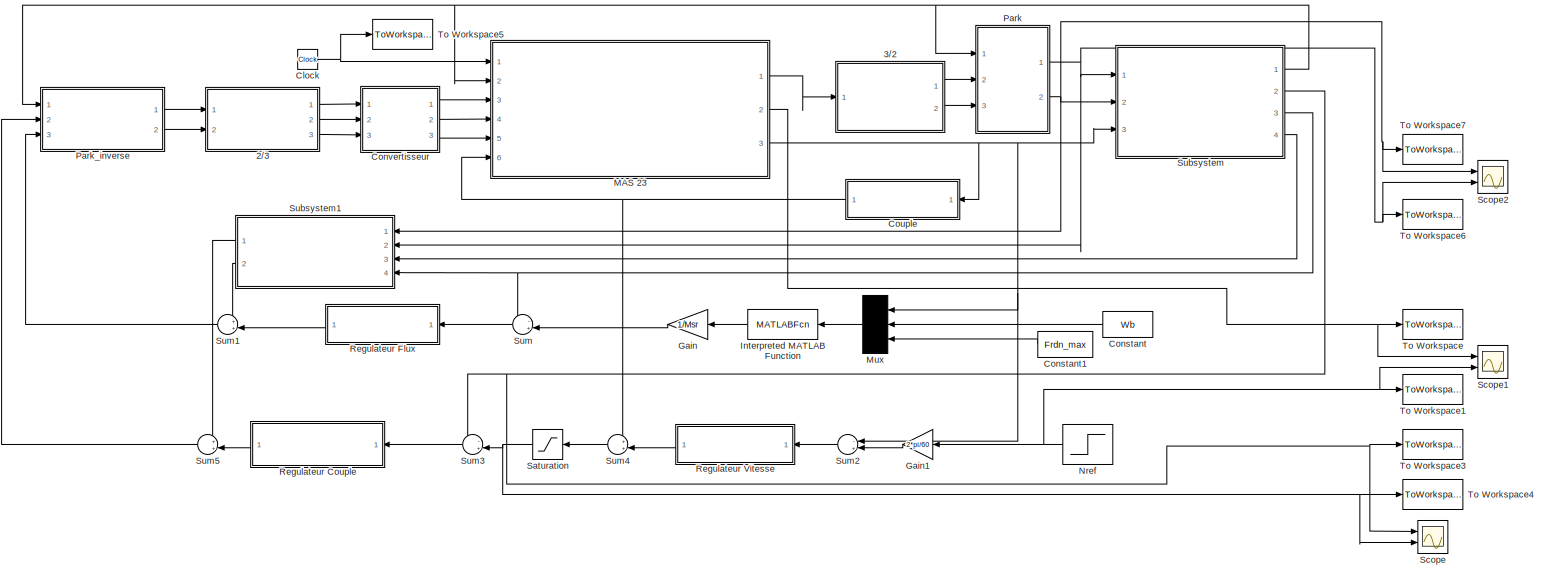
[diagram: root canvas - part 1/1, most of the canvas]
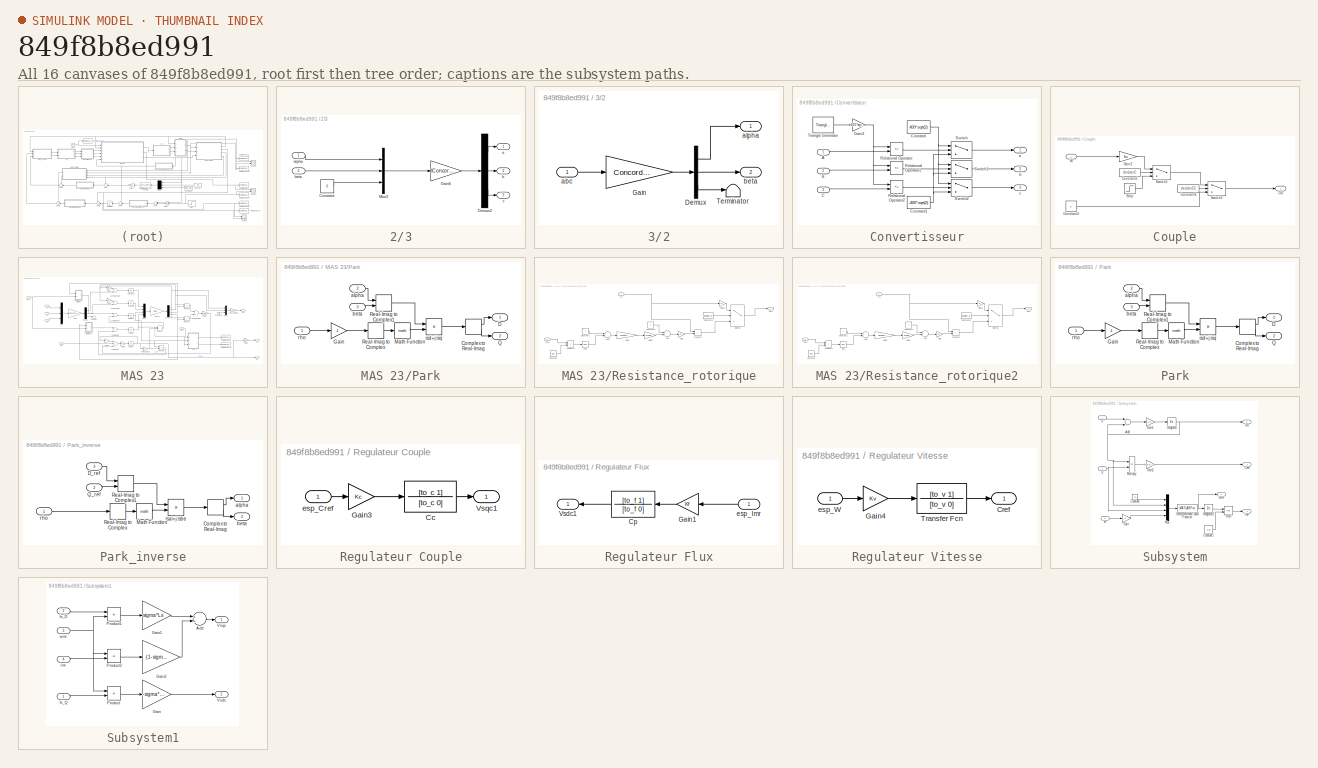
[diagram: thumbnail index - all 16 canvases of the model, root first then tree order]
MODEL slx_849f8b8ed991
KIND model
CONFIG AbsTol = auto
CONFIG EnableMultiTasking = off
CONFIG FixedStep = auto
CONFIG MaxStep = 1e-3
CONFIG MinStep = auto
CONFIG RelTol = 1e-3
CONFIG SampleTimeConstraint = Unconstrained
CONFIG Solver = ode45
CONFIG SolverName = ode45
CONFIG StartTime = 0.0
CONFIG StopTime = tps_sim
BLOCK [SubSystem] 2//3
  Ports = [2, 3]
  RequestExecContextInheritance = off
BLOCK [Constant] 2//3/Constant
  Value = 0
BLOCK [Demux] 2//3/Demux2
  DisplayOption = bar
  Outputs = 3
  Ports = [1, 3]
BLOCK [Gain] 2//3/Gain6
  Gain = IConcordia
  Multiplication = Matrix(K*u) (u vector)
  OutDataTypeStr = Inherit: Inherit via internal rule
  ParamDataTypeStr = Inherit: Inherit via internal rule
  SaturateOnIntegerOverflow = off
BLOCK [Mux] 2//3/Mux2
  DisplayOption = bar
  Inputs = 3
  Ports = [3, 1]
BLOCK [Outport] 2//3/a
  IconDisplay = Port number
BLOCK [Inport] 2//3/alpha
  IconDisplay = Port number
BLOCK [Outport] 2//3/b
  IconDisplay = Port number
  Port = 2
BLOCK [Inport] 2//3/beta
  IconDisplay = Port number
  Port = 2
BLOCK [Outport] 2//3/c
  IconDisplay = Port number
  Port = 3
BLOCK [SubSystem] 3//2
  Ports = [1, 2]
  RequestExecContextInheritance = off
BLOCK [Demux] 3//2/Demux
  DisplayOption = bar
  Outputs = 3
  Ports = [1, 3]
BLOCK [Gain] 3//2/Gain
  Gain = Concordia
  Multiplication = Matrix(K*u) (u vector)
  OutDataTypeStr = Inherit: Inherit via internal rule
  ParamDataTypeStr = Inherit: Inherit via internal rule
  SaturateOnIntegerOverflow = off
BLOCK [Terminator] 3//2/Terminator
BLOCK [Inport] 3//2/abc
  IconDisplay = Port number
BLOCK [Outport] 3//2/alpha
  IconDisplay = Port number
BLOCK [Outport] 3//2/beta
  IconDisplay = Port number
  Port = 2
BLOCK [Clock] Clock
BLOCK [Constant] Constant
  Value = Wb
BLOCK [Constant] Constant1
  Value = Frdn_max
BLOCK [SubSystem] Convertisseur
  Ports = [3, 3]
  RequestExecContextInheritance = off
BLOCK [Inport] Convertisseur/A
  IconDisplay = Port number
BLOCK [Inport] Convertisseur/B
  IconDisplay = Port number
  Port = 2
BLOCK [Inport] Convertisseur/C
  IconDisplay = Port number
  Port = 3
BLOCK [Constant] Convertisseur/Constant
  Value = 400*sqrt(2)
BLOCK [Constant] Convertisseur/Constant1
  Value = -400*sqrt(2)
BLOCK [Gain] Convertisseur/Gain3
  Gain = 400*sqrt(2)
  OutDataTypeStr = Inherit: Inherit via internal rule
  ParamDataTypeStr = Inherit: Inherit via internal rule
  SaturateOnIntegerOverflow = off
BLOCK [RelationalOperator] Convertisseur/Relational Operator
  InputSameDT = off
  Operator = <=
  OutDataTypeStr = boolean
  Ports = [2, 1]
  RndMeth = Simplest
BLOCK [RelationalOperator] Convertisseur/Relational Operator1
  InputSameDT = off
  Operator = <=
  OutDataTypeStr = boolean
  Ports = [2, 1]
  RndMeth = Simplest
BLOCK [RelationalOperator] Convertisseur/Relational Operator2
  InputSameDT = off
  Operator = <=
  OutDataTypeStr = boolean
  Ports = [2, 1]
  RndMeth = Simplest
BLOCK [Switch] Convertisseur/Switch
  Criteria = u2 > Threshold
  InputSameDT = off
  SaturateOnIntegerOverflow = off
BLOCK [Switch] Convertisseur/Switch1
  Criteria = u2 > Threshold
  InputSameDT = off
  SaturateOnIntegerOverflow = off
BLOCK [Switch] Convertisseur/Switch2
  Criteria = u2 > Threshold
  InputSameDT = off
  SaturateOnIntegerOverflow = off
BLOCK [Reference] Convertisseur/Triangle Generator  REF=powerlib_meascontrol/Pulse & Signal
Generators/Triangle
Generator
  Ports = [0, 1]
  SourceBlock = powerlib_meascontrol/Pulse & Signal\nGenerators/Triangle\nGenerator
  SourceProductBaseCode = PS
  SourceProductName = Simscape Power Systems
  SourceType = Triangle Generator
BLOCK [Outport] Convertisseur/a
  IconDisplay = Port number
BLOCK [Outport] Convertisseur/b
  IconDisplay = Port number
  Port = 2
BLOCK [Outport] Convertisseur/c
  IconDisplay = Port number
  Port = 3
BLOCK [SubSystem] Couple
  Ports = [1, 1]
  RequestExecContextInheritance = off
BLOCK [Constant] Couple/Constant1
  Value = deciderC
BLOCK [Constant] Couple/Constant2
  Value = 0
BLOCK [Constant] Couple/Constant4
  Value = deciderC2
BLOCK [Outport] Couple/Cr0
  IconDisplay = Port number
BLOCK [Gain] Couple/Gain2
  Gain = kc
  OutDataTypeStr = Inherit: Inherit via internal rule
  ParamDataTypeStr = Inherit: Inherit via internal rule
  SaturateOnIntegerOverflow = off
BLOCK [Step] Couple/Step
  After = C_in
  SampleTime = 0
  Time = 6
BLOCK [Switch] Couple/Switch1
  Criteria = u2 > Threshold
  InputSameDT = off
  SaturateOnIntegerOverflow = off
BLOCK [Switch] Couple/Switch2
  Criteria = u2 > Threshold
  InputSameDT = off
  SaturateOnIntegerOverflow = off
BLOCK [Inport] Couple/W
  IconDisplay = Port number
BLOCK [Gain] Gain
  Gain = 1/Msr
  OutDataTypeStr = Inherit: Inherit via internal rule
  ParamDataTypeStr = Inherit: Inherit via internal rule
  SaturateOnIntegerOverflow = off
BLOCK [Gain] Gain1
  Gain = 2*pi/60
  OutDataTypeStr = Inherit: Inherit via internal rule
  ParamDataTypeStr = Inherit: Inherit via internal rule
  SaturateOnIntegerOverflow = off
BLOCK [MATLABFcn] Interpreted MATLAB Function
  MATLABFcn = FluxCloche
  OutputDimensions = 1
  Ports = [1, 1]
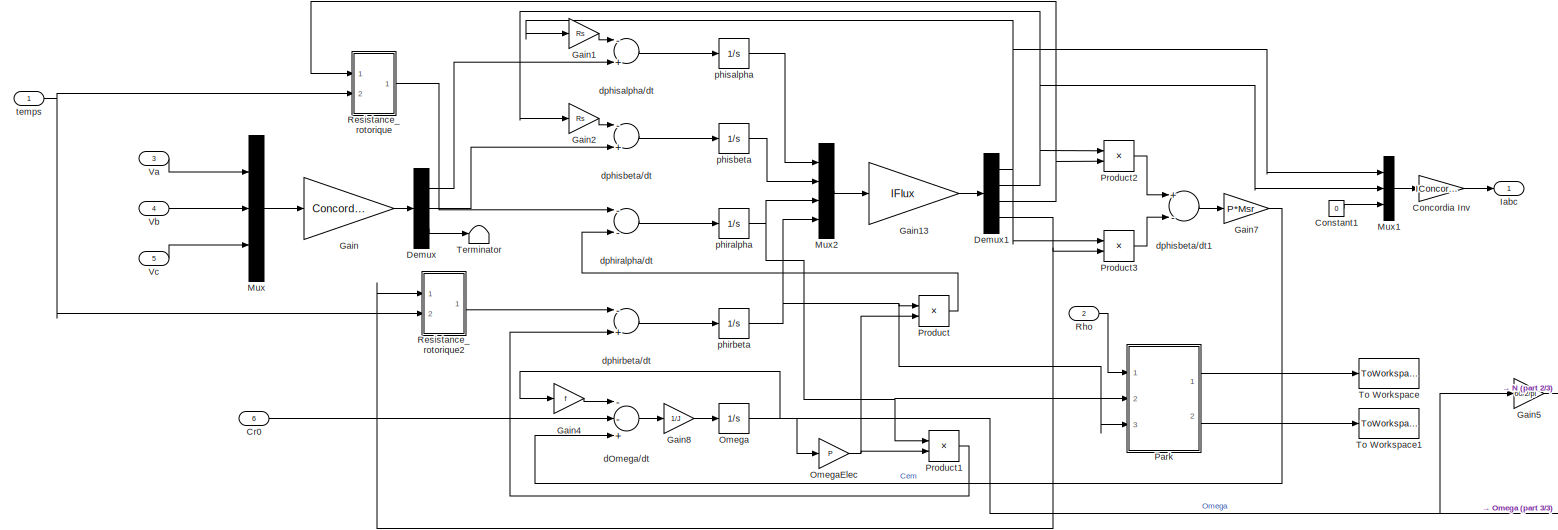
[diagram: MAS 23 - part 1/3, most of the canvas]
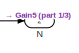
[diagram: MAS 23 - part 2/3, bottom right region]
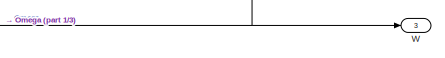
[diagram: MAS 23 - part 3/3, bottom right region]
BLOCK [SubSystem] MAS 23
  Ports = [6, 3]
  RequestExecContextInheritance = off
BLOCK [Gain] MAS 23/Concordia Inv
  Gain = IConcordia
  Multiplication = Matrix(K*u) (u vector)
  OutDataTypeStr = Inherit: Inherit via internal rule
  ParamDataTypeStr = Inherit: Inherit via internal rule
  SaturateOnIntegerOverflow = off
BLOCK [Constant] MAS 23/Constant1
  Value = 0
BLOCK [Inport] MAS 23/Cr0
  IconDisplay = Port number
  Port = 6
BLOCK [Demux] MAS 23/Demux
  Outputs = 3
  Ports = [1, 3]
BLOCK [Demux] MAS 23/Demux1
  DisplayOption = bar
  Ports = [1, 4]
BLOCK [Gain] MAS 23/Gain
  Gain = Concordia
  Multiplication = Matrix(K*u) (u vector)
  OutDataTypeStr = Inherit: Inherit via internal rule
  ParamDataTypeStr = Inherit: Inherit via internal rule
  SaturateOnIntegerOverflow = off
BLOCK [Gain] MAS 23/Gain1
  Gain = Rs
  OutDataTypeStr = Inherit: Inherit via internal rule
  ParamDataTypeStr = Inherit: Inherit via internal rule
  SaturateOnIntegerOverflow = off
BLOCK [Gain] MAS 23/Gain13
  Gain = IFlux
  Multiplication = Matrix(K*u) (u vector)
  OutDataTypeStr = Inherit: Inherit via internal rule
  ParamDataTypeStr = Inherit: Inherit via internal rule
  SaturateOnIntegerOverflow = off
BLOCK [Gain] MAS 23/Gain2
  Gain = Rs
  OutDataTypeStr = Inherit: Inherit via internal rule
  ParamDataTypeStr = Inherit: Inherit via internal rule
  SaturateOnIntegerOverflow = off
BLOCK [Gain] MAS 23/Gain4
  Gain = f
  OutDataTypeStr = Inherit: Inherit via internal rule
  ParamDataTypeStr = Inherit: Inherit via internal rule
  SaturateOnIntegerOverflow = off
BLOCK [Gain] MAS 23/Gain5
  Gain = 60/2/pi
  OutDataTypeStr = Inherit: Inherit via internal rule
  ParamDataTypeStr = Inherit: Inherit via internal rule
  SaturateOnIntegerOverflow = off
BLOCK [Gain] MAS 23/Gain7
  Gain = P*Msr
  OutDataTypeStr = Inherit: Inherit via internal rule
  ParamDataTypeStr = Inherit: Inherit via internal rule
  SaturateOnIntegerOverflow = off
BLOCK [Gain] MAS 23/Gain8
  Gain = 1/J
  OutDataTypeStr = Inherit: Inherit via internal rule
  ParamDataTypeStr = Inherit: Inherit via internal rule
  SaturateOnIntegerOverflow = off
BLOCK [Outport] MAS 23/Iabc
  IconDisplay = Port number
BLOCK [Mux] MAS 23/Mux
  Inputs = 3
  Ports = [3, 1]
BLOCK [Mux] MAS 23/Mux1
  Inputs = 3
  Ports = [3, 1]
BLOCK [Mux] MAS 23/Mux2
  Ports = [4, 1]
BLOCK [Outport] MAS 23/N
  IconDisplay = Port number
  Port = 2
BLOCK [Integrator] MAS 23/Omega
  Ports = [1, 1]
BLOCK [Gain] MAS 23/OmegaElec
  Gain = P
  OutDataTypeStr = Inherit: Inherit via internal rule
  ParamDataTypeStr = Inherit: Inherit via internal rule
  SaturateOnIntegerOverflow = off
BLOCK [SubSystem] MAS 23/Park
  Ports = [3, 2]
  RequestExecContextInheritance = off
BLOCK [ComplexToRealImag] MAS 23/Park/Complex to Real-Imag
  Ports = [1, 2]
BLOCK [Outport] MAS 23/Park/D
  IconDisplay = Port number
BLOCK [Gain] MAS 23/Park/Gain
  Gain = -1
  OutDataTypeStr = Inherit: Inherit via internal rule
  ParamDataTypeStr = Inherit: Inherit via internal rule
  SaturateOnIntegerOverflow = off
BLOCK [Math] MAS 23/Park/Math Function
  Ports = [1, 1]
BLOCK [Outport] MAS 23/Park/Q
  IconDisplay = Port number
  Port = 2
BLOCK [RealImagToComplex] MAS 23/Park/Real-Imag to Complex
  Input = Imag
  Ports = [1, 1]
BLOCK [RealImagToComplex] MAS 23/Park/Real-Imag to Complex1
  Ports = [2, 1]
BLOCK [Inport] MAS 23/Park/alpha
  IconDisplay = Port number
  Port = 2
BLOCK [Inport] MAS 23/Park/beta
  IconDisplay = Port number
  Port = 3
BLOCK [Product] MAS 23/Park/isd+j isq
  InputSameDT = off
  OutDataTypeStr = Inherit: Inherit via internal rule
  Ports = [2, 1]
  RndMeth = Floor
  SaturateOnIntegerOverflow = off
BLOCK [Inport] MAS 23/Park/rho
  IconDisplay = Port number
BLOCK [Product] MAS 23/Product
  InputSameDT = off
  OutDataTypeStr = Inherit: Inherit via internal rule
  Ports = [2, 1]
  RndMeth = Floor
  SaturateOnIntegerOverflow = off
BLOCK [Product] MAS 23/Product1
  InputSameDT = off
  OutDataTypeStr = Inherit: Inherit via internal rule
  Ports = [2, 1]
  RndMeth = Floor
  SaturateOnIntegerOverflow = off
BLOCK [Product] MAS 23/Product2
  InputSameDT = off
  OutDataTypeStr = Inherit: Inherit via internal rule
  Ports = [2, 1]
  RndMeth = Floor
  SaturateOnIntegerOverflow = off
BLOCK [Product] MAS 23/Product3
  InputSameDT = off
  OutDataTypeStr = Inherit: Inherit via internal rule
  Ports = [2, 1]
  RndMeth = Floor
  SaturateOnIntegerOverflow = off
BLOCK [SubSystem] MAS 23/Resistance_rotorique
  Ports = [2, 1]
  RequestExecContextInheritance = off
BLOCK [Sum] MAS 23/Resistance_rotorique/Add
  InputSameDT = off
  OutDataTypeStr = Inherit: Inherit via internal rule
  Ports = [2, 1]
  SaturateOnIntegerOverflow = off
BLOCK [Sum] MAS 23/Resistance_rotorique/Add1
  InputSameDT = off
  Inputs = +-
  OutDataTypeStr = Inherit: Inherit via internal rule
  Ports = [2, 1]
  SaturateOnIntegerOverflow = off
BLOCK [Constant] MAS 23/Resistance_rotorique/Constant
  Value = -1/tau
BLOCK [Constant] MAS 23/Resistance_rotorique/Constant1
BLOCK [Constant] MAS 23/Resistance_rotorique/Constant2
BLOCK [Constant] MAS 23/Resistance_rotorique/Constant6
  Value = decider_R
BLOCK [Math] MAS 23/Resistance_rotorique/Exp
  Ports = [1, 1]
BLOCK [Gain] MAS 23/Resistance_rotorique/Gain
  Gain = Rr
  OutDataTypeStr = Inherit: Inherit via internal rule
  ParamDataTypeStr = Inherit: Inherit via internal rule
  SaturateOnIntegerOverflow = off
BLOCK [Gain] MAS 23/Resistance_rotorique/Gain11
  Gain = Rr
  OutDataTypeStr = Inherit: Inherit via internal rule
  ParamDataTypeStr = Inherit: Inherit via internal rule
  SaturateOnIntegerOverflow = off
BLOCK [Gain] MAS 23/Resistance_rotorique/Gain2
  Gain = echauffement
  OutDataTypeStr = Inherit: Inherit via internal rule
  ParamDataTypeStr = Inherit: Inherit via internal rule
  SaturateOnIntegerOverflow = off
BLOCK [Gain] MAS 23/Resistance_rotorique/Gain3
  Gain = alpha
  OutDataTypeStr = Inherit: Inherit via internal rule
  ParamDataTypeStr = Inherit: Inherit via internal rule
  SaturateOnIntegerOverflow = off
BLOCK [Inport] MAS 23/Resistance_rotorique/In1
  IconDisplay = Port number
BLOCK [Outport] MAS 23/Resistance_rotorique/Out1
  IconDisplay = Port number
BLOCK [Product] MAS 23/Resistance_rotorique/Product1
  InputSameDT = off
  OutDataTypeStr = Inherit: Inherit via internal rule
  Ports = [2, 1]
  RndMeth = Floor
  SaturateOnIntegerOverflow = off
BLOCK [Product] MAS 23/Resistance_rotorique/Product2
  InputSameDT = off
  OutDataTypeStr = Inherit: Inherit via internal rule
  Ports = [2, 1]
  RndMeth = Floor
  SaturateOnIntegerOverflow = off
BLOCK [Switch] MAS 23/Resistance_rotorique/Switch1
  Criteria = u2 > Threshold
  InputSameDT = off
  SaturateOnIntegerOverflow = off
BLOCK [Inport] MAS 23/Resistance_rotorique/Time
  IconDisplay = Port number
  Port = 2
BLOCK [SubSystem] MAS 23/Resistance_rotorique2
  Ports = [2, 1]
  RequestExecContextInheritance = off
BLOCK [Sum] MAS 23/Resistance_rotorique2/Add
  InputSameDT = off
  OutDataTypeStr = Inherit: Inherit via internal rule
  Ports = [2, 1]
  SaturateOnIntegerOverflow = off
BLOCK [Sum] MAS 23/Resistance_rotorique2/Add1
  InputSameDT = off
  Inputs = +-
  OutDataTypeStr = Inherit: Inherit via internal rule
  Ports = [2, 1]
  SaturateOnIntegerOverflow = off
BLOCK [Constant] MAS 23/Resistance_rotorique2/Constant
  Value = -1/tau
BLOCK [Constant] MAS 23/Resistance_rotorique2/Constant1
BLOCK [Constant] MAS 23/Resistance_rotorique2/Constant2
BLOCK [Constant] MAS 23/Resistance_rotorique2/Constant6
  Value = decider_R
BLOCK [Math] MAS 23/Resistance_rotorique2/Exp
  Ports = [1, 1]
BLOCK [Gain] MAS 23/Resistance_rotorique2/Gain
  Gain = Rr
  OutDataTypeStr = Inherit: Inherit via internal rule
  ParamDataTypeStr = Inherit: Inherit via internal rule
  SaturateOnIntegerOverflow = off
BLOCK [Gain] MAS 23/Resistance_rotorique2/Gain11
  Gain = Rr
  OutDataTypeStr = Inherit: Inherit via internal rule
  ParamDataTypeStr = Inherit: Inherit via internal rule
  SaturateOnIntegerOverflow = off
BLOCK [Gain] MAS 23/Resistance_rotorique2/Gain2
  Gain = echauffement
  OutDataTypeStr = Inherit: Inherit via internal rule
  ParamDataTypeStr = Inherit: Inherit via internal rule
  SaturateOnIntegerOverflow = off
BLOCK [Gain] MAS 23/Resistance_rotorique2/Gain3
  Gain = alpha
  OutDataTypeStr = Inherit: Inherit via internal rule
  ParamDataTypeStr = Inherit: Inherit via internal rule
  SaturateOnIntegerOverflow = off
BLOCK [Inport] MAS 23/Resistance_rotorique2/In1
  IconDisplay = Port number
BLOCK [Outport] MAS 23/Resistance_rotorique2/Out1
  IconDisplay = Port number
BLOCK [Product] MAS 23/Resistance_rotorique2/Product1
  InputSameDT = off
  OutDataTypeStr = Inherit: Inherit via internal rule
  Ports = [2, 1]
  RndMeth = Floor
  SaturateOnIntegerOverflow = off
BLOCK [Product] MAS 23/Resistance_rotorique2/Product2
  InputSameDT = off
  OutDataTypeStr = Inherit: Inherit via internal rule
  Ports = [2, 1]
  RndMeth = Floor
  SaturateOnIntegerOverflow = off
BLOCK [Switch] MAS 23/Resistance_rotorique2/Switch1
  Criteria = u2 > Threshold
  InputSameDT = off
  SaturateOnIntegerOverflow = off
BLOCK [Inport] MAS 23/Resistance_rotorique2/Time
  IconDisplay = Port number
  Port = 2
BLOCK [Inport] MAS 23/Rho
  IconDisplay = Port number
  Port = 2
BLOCK [Terminator] MAS 23/Terminator
BLOCK [ToWorkspace] MAS 23/To Workspace
  Commented = on
  FixptAsFi = on
  MaxDataPoints = inf
  Ports = [1]
  SampleTime = -1
  Save2DSignal = 3-D array (concatenate along third dimension)
  VariableName = Phi_RD
BLOCK [ToWorkspace] MAS 23/To Workspace1
  Commented = on
  FixptAsFi = on
  MaxDataPoints = inf
  Ports = [1]
  SampleTime = -1
  Save2DSignal = 3-D array (concatenate along third dimension)
  VariableName = Phi_RQ
BLOCK [Inport] MAS 23/Va
  IconDisplay = Port number
  Port = 3
BLOCK [Inport] MAS 23/Vb
  IconDisplay = Port number
  Port = 4
BLOCK [Inport] MAS 23/Vc
  IconDisplay = Port number
  Port = 5
BLOCK [Outport] MAS 23/W
  IconDisplay = Port number
  Port = 3
BLOCK [Sum] MAS 23/dOmega//dt
  InputSameDT = off
  Inputs = --+
  OutDataTypeStr = Inherit: Inherit via internal rule
  Ports = [3, 1]
  SaturateOnIntegerOverflow = off
BLOCK [Sum] MAS 23/dphiralpha//dt
  InputSameDT = off
  Inputs = --
  OutDataTypeStr = Inherit: Inherit via internal rule
  Ports = [2, 1]
  SaturateOnIntegerOverflow = off
BLOCK [Sum] MAS 23/dphirbeta//dt
  InputSameDT = off
  Inputs = -+
  OutDataTypeStr = Inherit: Inherit via internal rule
  Ports = [2, 1]
  SaturateOnIntegerOverflow = off
BLOCK [Sum] MAS 23/dphisalpha//dt
  InputSameDT = off
  Inputs = -+
  OutDataTypeStr = Inherit: Inherit via internal rule
  Ports = [2, 1]
  SaturateOnIntegerOverflow = off
BLOCK [Sum] MAS 23/dphisbeta//dt
  InputSameDT = off
  Inputs = -+
  OutDataTypeStr = Inherit: Inherit via internal rule
  Ports = [2, 1]
  SaturateOnIntegerOverflow = off
BLOCK [Sum] MAS 23/dphisbeta//dt1
  InputSameDT = off
  Inputs = +-
  OutDataTypeStr = Inherit: Inherit via internal rule
  Ports = [2, 1]
  SaturateOnIntegerOverflow = off
BLOCK [Integrator] MAS 23/phiralpha
  Ports = [1, 1]
BLOCK [Integrator] MAS 23/phirbeta
  Ports = [1, 1]
BLOCK [Integrator] MAS 23/phisalpha
  Ports = [1, 1]
BLOCK [Integrator] MAS 23/phisbeta
  Ports = [1, 1]
BLOCK [Inport] MAS 23/temps
  IconDisplay = Port number
BLOCK [Mux] Mux
  Inputs = 3
  Ports = [3, 1]
BLOCK [Step] Nref
  After = N_in
  SampleTime = 0
  Time = 2
BLOCK [SubSystem] Park
  Ports = [3, 2]
  RequestExecContextInheritance = off
BLOCK [ComplexToRealImag] Park/Complex to Real-Imag
  Ports = [1, 2]
BLOCK [Outport] Park/D
  IconDisplay = Port number
BLOCK [Gain] Park/Gain
  Gain = -1
  OutDataTypeStr = Inherit: Inherit via internal rule
  ParamDataTypeStr = Inherit: Inherit via internal rule
  SaturateOnIntegerOverflow = off
BLOCK [Math] Park/Math Function
  Ports = [1, 1]
BLOCK [Outport] Park/Q
  IconDisplay = Port number
  Port = 2
BLOCK [RealImagToComplex] Park/Real-Imag to Complex
  Input = Imag
  Ports = [1, 1]
BLOCK [RealImagToComplex] Park/Real-Imag to Complex1
  Ports = [2, 1]
BLOCK [Inport] Park/alpha
  IconDisplay = Port number
  Port = 2
BLOCK [Inport] Park/beta
  IconDisplay = Port number
  Port = 3
BLOCK [Product] Park/isd+j isq
  InputSameDT = off
  OutDataTypeStr = Inherit: Inherit via internal rule
  Ports = [2, 1]
  RndMeth = Floor
  SaturateOnIntegerOverflow = off
BLOCK [Inport] Park/rho
  IconDisplay = Port number
BLOCK [SubSystem] Park_inverse
  Ports = [3, 2]
  RequestExecContextInheritance = off
BLOCK [ComplexToRealImag] Park_inverse/Complex to Real-Imag
  Ports = [1, 2]
BLOCK [Inport] Park_inverse/D_ref
  IconDisplay = Port number
  Port = 3
BLOCK [Math] Park_inverse/Math Function
  Ports = [1, 1]
BLOCK [Inport] Park_inverse/Q_ref
  IconDisplay = Port number
  Port = 2
BLOCK [RealImagToComplex] Park_inverse/Real-Imag to Complex
  Input = Imag
  Ports = [1, 1]
BLOCK [RealImagToComplex] Park_inverse/Real-Imag to Complex1
  Ports = [2, 1]
BLOCK [Outport] Park_inverse/alpha
  IconDisplay = Port number
BLOCK [Outport] Park_inverse/beta
  IconDisplay = Port number
  Port = 2
BLOCK [Product] Park_inverse/isal+j isbe
  InputSameDT = off
  OutDataTypeStr = Inherit: Inherit via internal rule
  Ports = [2, 1]
  RndMeth = Floor
  SaturateOnIntegerOverflow = off
BLOCK [Inport] Park_inverse/rho
  IconDisplay = Port number
BLOCK [SubSystem] Regulateur Couple
  Ports = [1, 1]
  RequestExecContextInheritance = off
BLOCK [TransferFcn] Regulateur Couple/Cc
  Denominator = [to_c 0]
  Numerator = [to_c 1]
BLOCK [Gain] Regulateur Couple/Gain3
  Gain = Kc
  OutDataTypeStr = Inherit: Inherit via internal rule
  ParamDataTypeStr = Inherit: Inherit via internal rule
  SaturateOnIntegerOverflow = off
BLOCK [Outport] Regulateur Couple/Vsqc1
  IconDisplay = Port number
BLOCK [Inport] Regulateur Couple/esp_Cref
  IconDisplay = Port number
BLOCK [SubSystem] Regulateur Flux
  Ports = [1, 1]
  RequestExecContextInheritance = off
BLOCK [TransferFcn] Regulateur Flux/Cp
  Denominator = [to_f 0]
  Numerator = [to_f 1]
BLOCK [Gain] Regulateur Flux/Gain1
  Gain = Kf
  OutDataTypeStr = Inherit: Inherit via internal rule
  ParamDataTypeStr = Inherit: Inherit via internal rule
  SaturateOnIntegerOverflow = off
BLOCK [Outport] Regulateur Flux/Vsdc1
  IconDisplay = Port number
BLOCK [Inport] Regulateur Flux/esp_Imr
  IconDisplay = Port number
BLOCK [SubSystem] Regulateur Vitesse
  Ports = [1, 1]
  RequestExecContextInheritance = off
BLOCK [Outport] Regulateur Vitesse/Cref
  IconDisplay = Port number
BLOCK [Gain] Regulateur Vitesse/Gain4
  Gain = Kv
  OutDataTypeStr = Inherit: Inherit via internal rule
  ParamDataTypeStr = Inherit: Inherit via internal rule
  SaturateOnIntegerOverflow = off
BLOCK [TransferFcn] Regulateur Vitesse/Transfer Fcn
  Denominator = [to_v 0]
  Numerator = [to_v 1]
BLOCK [Inport] Regulateur Vitesse/esp_W
  IconDisplay = Port number
BLOCK [Saturate] Saturation
  InputPortMap = u0
  LowerLimit = -Cemn
  Ports = [1, 1]
  UpperLimit = Cemn
BLOCK [Scope] Scope
  Floating = off
  NumInputPorts = 2
  Ports = [2]
  ScopeSpecificationString = Simulink.scopes.TimeScopeBlockCfg('CurrentConfiguration', extmgr.ConfigurationSet(extmgr.Configuration('Core','General UI',true),extmgr.Configuration('Core','Source UI',true),extmgr.Configuration('Sources','WiredSimulink',true),extmgr.Configuration('Visuals','Time Domain',true,'SerializedDisplays',{struct('MinYLimReal','-109.01661','MaxYLimReal','981.14953','YLabelReal','','MinYLimMag',' 0.00000',...<+1402ch>
BLOCK [Scope] Scope1
  Floating = off
  NumInputPorts = 2
  Ports = [2]
  ScopeSpecificationString = Simulink.scopes.TimeScopeBlockCfg('CurrentConfiguration', extmgr.ConfigurationSet(extmgr.Configuration('Core','General UI',true),extmgr.Configuration('Core','Source UI',true),extmgr.Configuration('Sources','WiredSimulink',true,'DataLoggingVariableName','ScopeData1'),extmgr.Configuration('Visuals','Time Domain',true,'SerializedDisplays',{struct('MinYLimReal','-109.01661','MaxYLimReal','981.14953','...<+1441ch>
BLOCK [Scope] Scope2
  Floating = off
  NumInputPorts = 2
  Ports = [2]
  ScopeSpecificationString = Simulink.scopes.TimeScopeBlockCfg('CurrentConfiguration', extmgr.ConfigurationSet(extmgr.Configuration('Core','General UI',true),extmgr.Configuration('Core','Source UI',true),extmgr.Configuration('Sources','WiredSimulink',true,'DataLoggingVariableName','ScopeData2'),extmgr.Configuration('Visuals','Time Domain',true,'SerializedDisplays',{struct('MinYLimReal','-109.01661','MaxYLimReal','981.14953','...<+1441ch>
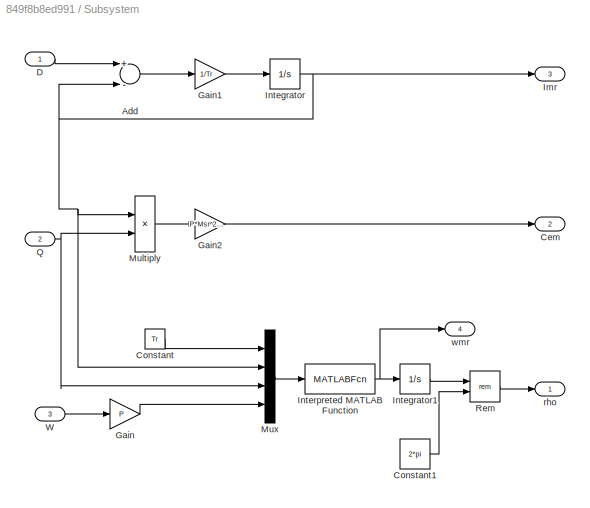
BLOCK [SubSystem] Subsystem
  Ports = [3, 4]
  RequestExecContextInheritance = off
BLOCK [Sum] Subsystem/Add
  InputSameDT = off
  Inputs = +-
  OutDataTypeStr = Inherit: Inherit via internal rule
  Ports = [2, 1]
  SaturateOnIntegerOverflow = off
BLOCK [Outport] Subsystem/Cem
  IconDisplay = Port number
  Port = 2
BLOCK [Constant] Subsystem/Constant
  Value = Tr
BLOCK [Constant] Subsystem/Constant1
  Value = 2*pi
BLOCK [Inport] Subsystem/D
  IconDisplay = Port number
BLOCK [Gain] Subsystem/Gain
  Gain = P
  OutDataTypeStr = Inherit: Inherit via internal rule
  ParamDataTypeStr = Inherit: Inherit via internal rule
  SaturateOnIntegerOverflow = off
BLOCK [Gain] Subsystem/Gain1
  Gain = 1/Tr
  OutDataTypeStr = Inherit: Inherit via internal rule
  ParamDataTypeStr = Inherit: Inherit via internal rule
  SaturateOnIntegerOverflow = off
BLOCK [Gain] Subsystem/Gain2
  Gain = P*Msr^2/Lr
  OutDataTypeStr = Inherit: Inherit via internal rule
  ParamDataTypeStr = Inherit: Inherit via internal rule
  SaturateOnIntegerOverflow = off
BLOCK [Outport] Subsystem/Imr
  IconDisplay = Port number
  Port = 3
BLOCK [Integrator] Subsystem/Integrator
  Ports = [1, 1]
BLOCK [Integrator] Subsystem/Integrator1
  Ports = [1, 1]
BLOCK [MATLABFcn] Subsystem/Interpreted MATLAB Function
  MATLABFcn = Omega_mr
  OutputDimensions = 1
  Ports = [1, 1]
BLOCK [Product] Subsystem/Multiply
  InputSameDT = off
  OutDataTypeStr = Inherit: Inherit via internal rule
  Ports = [2, 1]
  RndMeth = Floor
  SaturateOnIntegerOverflow = off
BLOCK [Mux] Subsystem/Mux
  DisplayOption = bar
  Ports = [4, 1]
BLOCK [Inport] Subsystem/Q
  IconDisplay = Port number
  Port = 2
BLOCK [Math] Subsystem/Rem
  Operator = rem
  Ports = [2, 1]
BLOCK [Inport] Subsystem/W
  IconDisplay = Port number
  Port = 3
BLOCK [Outport] Subsystem/rho
  IconDisplay = Port number
BLOCK [Outport] Subsystem/wmr
  IconDisplay = Port number
  Port = 4
BLOCK [SubSystem] Subsystem1
  Ports = [4, 2]
  RequestExecContextInheritance = off
BLOCK [Sum] Subsystem1/Add
  InputSameDT = off
  OutDataTypeStr = Inherit: Inherit via internal rule
  Ports = [2, 1]
  SaturateOnIntegerOverflow = off
BLOCK [Gain] Subsystem1/Gain
  Gain = -sigma*Ls
  OutDataTypeStr = Inherit: Inherit via internal rule
  ParamDataTypeStr = Inherit: Inherit via internal rule
  SaturateOnIntegerOverflow = off
BLOCK [Gain] Subsystem1/Gain1
  Gain = sigma*Ls
  OutDataTypeStr = Inherit: Inherit via internal rule
  ParamDataTypeStr = Inherit: Inherit via internal rule
  SaturateOnIntegerOverflow = off
BLOCK [Gain] Subsystem1/Gain2
  Gain = (1-sigma)*Ls
  OutDataTypeStr = Inherit: Inherit via internal rule
  ParamDataTypeStr = Inherit: Inherit via internal rule
  SaturateOnIntegerOverflow = off
BLOCK [Inport] Subsystem1/Is_D
  IconDisplay = Port number
  Port = 2
BLOCK [Inport] Subsystem1/Is_Q
  IconDisplay = Port number
BLOCK [Product] Subsystem1/Product
  InputSameDT = off
  OutDataTypeStr = Inherit: Inherit via internal rule
  Ports = [2, 1]
  RndMeth = Floor
  SaturateOnIntegerOverflow = off
BLOCK [Product] Subsystem1/Product1
  InputSameDT = off
  OutDataTypeStr = Inherit: Inherit via internal rule
  Ports = [2, 1]
  RndMeth = Floor
  SaturateOnIntegerOverflow = off
BLOCK [Product] Subsystem1/Product2
  InputSameDT = off
  OutDataTypeStr = Inherit: Inherit via internal rule
  Ports = [2, 1]
  RndMeth = Floor
  SaturateOnIntegerOverflow = off
BLOCK [Outport] Subsystem1/Vsdc
  IconDisplay = Port number
  Port = 2
BLOCK [Outport] Subsystem1/Vsqc
  IconDisplay = Port number
BLOCK [Inport] Subsystem1/imr
  IconDisplay = Port number
  Port = 4
BLOCK [Inport] Subsystem1/wmr
  IconDisplay = Port number
  Port = 3
BLOCK [Sum] Sum
  IconShape = round
  InputSameDT = off
  Inputs = -+|
  OutDataTypeStr = Inherit: Inherit via internal rule
  Ports = [2, 1]
  SaturateOnIntegerOverflow = off
BLOCK [Sum] Sum1
  IconShape = round
  InputSameDT = off
  Inputs = ++|
  OutDataTypeStr = Inherit: Inherit via internal rule
  Ports = [2, 1]
  SaturateOnIntegerOverflow = off
BLOCK [Sum] Sum2
  IconShape = round
  InputSameDT = off
  Inputs = -+|
  OutDataTypeStr = Inherit: Inherit via internal rule
  Ports = [2, 1]
  SaturateOnIntegerOverflow = off
BLOCK [Sum] Sum3
  IconShape = round
  InputSameDT = off
  Inputs = -+|
  OutDataTypeStr = Inherit: Inherit via internal rule
  Ports = [2, 1]
  SaturateOnIntegerOverflow = off
BLOCK [Sum] Sum4
  IconShape = round
  InputSameDT = off
  Inputs = ++|
  OutDataTypeStr = Inherit: Inherit via internal rule
  Ports = [2, 1]
  SaturateOnIntegerOverflow = off
BLOCK [Sum] Sum5
  IconShape = round
  InputSameDT = off
  Inputs = ++|
  OutDataTypeStr = Inherit: Inherit via internal rule
  Ports = [2, 1]
  SaturateOnIntegerOverflow = off
BLOCK [ToWorkspace] To Workspace
  Commented = on
  FixptAsFi = on
  MaxDataPoints = inf
  Ports = [1]
  SampleTime = -1
  Save2DSignal = 3-D array (concatenate along third dimension)
  VariableName = N
BLOCK [ToWorkspace] To Workspace1
  Commented = on
  FixptAsFi = on
  MaxDataPoints = inf
  Ports = [1]
  SampleTime = -1
  Save2DSignal = 3-D array (concatenate along third dimension)
  VariableName = NR
BLOCK [ToWorkspace] To Workspace3
  Commented = on
  FixptAsFi = on
  MaxDataPoints = inf
  Ports = [1]
  SampleTime = -1
  Save2DSignal = 3-D array (concatenate along third dimension)
  VariableName = CemS
BLOCK [ToWorkspace] To Workspace4
  Commented = on
  FixptAsFi = on
  MaxDataPoints = inf
  Ports = [1]
  SampleTime = -1
  Save2DSignal = 3-D array (concatenate along third dimension)
  VariableName = CemSR
BLOCK [ToWorkspace] To Workspace5
  FixptAsFi = on
  MaxDataPoints = inf
  Ports = [1]
  SampleTime = -1
  Save2DSignal = 3-D array (concatenate along third dimension)
  VariableName = Tout
BLOCK [ToWorkspace] To Workspace6
  Commented = on
  FixptAsFi = on
  MaxDataPoints = inf
  Ports = [1]
  SampleTime = -1
  Save2DSignal = 3-D array (concatenate along third dimension)
  VariableName = ID
BLOCK [ToWorkspace] To Workspace7
  Commented = on
  FixptAsFi = on
  MaxDataPoints = inf
  Ports = [1]
  SampleTime = -1
  Save2DSignal = 3-D array (concatenate along third dimension)
  VariableName = IQ
LINE 2//3/Constant:1 -> 2//3/Mux2:3
LINE 2//3/Demux2:1 -> 2//3/a:1
LINE 2//3/Demux2:2 -> 2//3/b:1
LINE 2//3/Demux2:3 -> 2//3/c:1
LINE 2//3/Gain6:1 -> 2//3/Demux2:1
LINE 2//3/Mux2:1 -> 2//3/Gain6:1
LINE 2//3/alpha:1 -> 2//3/Mux2:1
LINE 2//3/beta:1 -> 2//3/Mux2:2
LINE 2//3:1 -> Convertisseur:1
LINE 2//3:2 -> Convertisseur:2
LINE 2//3:3 -> Convertisseur:3
LINE 3//2/Demux:1 -> 3//2/alpha:1
LINE 3//2/Demux:2 -> 3//2/beta:1
LINE 3//2/Demux:3 -> 3//2/Terminator:1
LINE 3//2/Gain:1 -> 3//2/Demux:1
LINE 3//2/abc:1 -> 3//2/Gain:1
LINE 3//2:1 -> Park:2
LINE 3//2:2 -> Park:3
NET Clock:1 -> MAS 23:1, To Workspace5:1
LINE Constant1:1 -> Mux:3
LINE Constant:1 -> Mux:2
LINE Convertisseur/A:1 -> Convertisseur/Relational Operator:2
LINE Convertisseur/B:1 -> Convertisseur/Relational Operator1:2
LINE Convertisseur/C:1 -> Convertisseur/Relational Operator2:2
NET Convertisseur/Constant1:1 -> Convertisseur/Switch1:3, Convertisseur/Switch2:3, Convertisseur/Switch:3
NET Convertisseur/Constant:1 -> Convertisseur/Switch1:1, Convertisseur/Switch2:1, Convertisseur/Switch:1
NET Convertisseur/Gain3:1 -> Convertisseur/Relational Operator1:1, Convertisseur/Relational Operator2:1, Convertisseur/Relational Operator:1
LINE Convertisseur/Relational Operator1:1 -> Convertisseur/Switch1:2
LINE Convertisseur/Relational Operator2:1 -> Convertisseur/Switch2:2
LINE Convertisseur/Relational Operator:1 -> Convertisseur/Switch:2
LINE Convertisseur/Switch1:1 -> Convertisseur/b:1
LINE Convertisseur/Switch2:1 -> Convertisseur/c:1
LINE Convertisseur/Switch:1 -> Convertisseur/a:1
LINE Convertisseur/Triangle Generator:1 -> Convertisseur/Gain3:1
LINE Convertisseur:1 -> MAS 23:3
LINE Convertisseur:2 -> MAS 23:4
LINE Convertisseur:3 -> MAS 23:5
LINE Couple/Constant1:1 -> Couple/Switch1:2
LINE Couple/Constant2:1 -> Couple/Switch2:3
LINE Couple/Constant4:1 -> Couple/Switch2:2
LINE Couple/Gain2:1 -> Couple/Switch1:1
LINE Couple/Step:1 -> Couple/Switch1:3
LINE Couple/Switch1:1 -> Couple/Switch2:1
LINE Couple/Switch2:1 -> Couple/Cr0:1
LINE Couple/W:1 -> Couple/Gain2:1
NET Couple:1 -> MAS 23:6, Sum4:1
LINE Gain1:1 -> Sum2:2
LINE Gain:1 -> Sum:2
LINE Interpreted MATLAB Function:1 -> Gain:1
LINE MAS 23/Concordia Inv:1 -> MAS 23/Iabc:1
LINE MAS 23/Constant1:1 -> MAS 23/Mux1:3
LINE MAS 23/Cr0:1 -> MAS 23/dOmega//dt:2
NET MAS 23/Demux1:1 -> MAS 23/Gain1:1, MAS 23/Mux1:1, MAS 23/Product3:1
NET MAS 23/Demux1:2 -> MAS 23/Gain2:1, MAS 23/Mux1:2, MAS 23/Product2:1
NET MAS 23/Demux1:3 -> MAS 23/Product2:2, MAS 23/Resistance_rotorique:1
NET MAS 23/Demux1:4 -> MAS 23/Product3:2, MAS 23/Resistance_rotorique2:1
LINE MAS 23/Demux:1 -> MAS 23/dphisalpha//dt:2
LINE MAS 23/Demux:2 -> MAS 23/dphisbeta//dt:2
LINE MAS 23/Demux:3 -> MAS 23/Terminator:1
LINE MAS 23/Gain13:1 -> MAS 23/Demux1:1
LINE MAS 23/Gain1:1 -> MAS 23/dphisalpha//dt:1
LINE MAS 23/Gain2:1 -> MAS 23/dphisbeta//dt:1
LINE MAS 23/Gain4:1 -> MAS 23/dOmega//dt:1
LINE MAS 23/Gain5:1 -> MAS 23/N:1
LINE MAS 23/Gain7:1 -> MAS 23/dOmega//dt:3
LINE MAS 23/Gain8:1 -> MAS 23/Omega:1
LINE MAS 23/Gain:1 -> MAS 23/Demux:1
LINE MAS 23/Mux1:1 -> MAS 23/Concordia Inv:1
LINE MAS 23/Mux2:1 -> MAS 23/Gain13:1
LINE MAS 23/Mux:1 -> MAS 23/Gain:1
NET MAS 23/Omega:1 -> MAS 23/Gain4:1, MAS 23/Gain5:1, MAS 23/OmegaElec:1, MAS 23/W:1
NET MAS 23/OmegaElec:1 -> MAS 23/Product1:2, MAS 23/Product:2
LINE MAS 23/Park/Complex to Real-Imag:1 -> MAS 23/Park/D:1
LINE MAS 23/Park/Complex to Real-Imag:2 -> MAS 23/Park/Q:1
LINE MAS 23/Park/Gain:1 -> MAS 23/Park/Real-Imag to Complex:1
LINE MAS 23/Park/Math Function:1 -> MAS 23/Park/isd+j isq:2
LINE MAS 23/Park/Real-Imag to Complex1:1 -> MAS 23/Park/isd+j isq:1
LINE MAS 23/Park/Real-Imag to Complex:1 -> MAS 23/Park/Math Function:1
LINE MAS 23/Park/alpha:1 -> MAS 23/Park/Real-Imag to Complex1:1
LINE MAS 23/Park/beta:1 -> MAS 23/Park/Real-Imag to Complex1:2
LINE MAS 23/Park/isd+j isq:1 -> MAS 23/Park/Complex to Real-Imag:1
LINE MAS 23/Park/rho:1 -> MAS 23/Park/Gain:1
LINE MAS 23/Park:1 -> MAS 23/To Workspace:1
LINE MAS 23/Park:2 -> MAS 23/To Workspace1:1
LINE MAS 23/Product1:1 -> MAS 23/dphirbeta//dt:2
LINE MAS 23/Product2:1 -> MAS 23/dphisbeta//dt1:1
LINE MAS 23/Product3:1 -> MAS 23/dphisbeta//dt1:2
LINE MAS 23/Product:1 -> MAS 23/dphiralpha//dt:2
LINE MAS 23/Resistance_rotorique/Add1:1 -> MAS 23/Resistance_rotorique/Gain2:1
LINE MAS 23/Resistance_rotorique/Add:1 -> MAS 23/Resistance_rotorique/Gain:1
LINE MAS 23/Resistance_rotorique/Constant1:1 -> MAS 23/Resistance_rotorique/Add1:1
LINE MAS 23/Resistance_rotorique/Constant2:1 -> MAS 23/Resistance_rotorique/Add:1
LINE MAS 23/Resistance_rotorique/Constant6:1 -> MAS 23/Resistance_rotorique/Switch1:2
LINE MAS 23/Resistance_rotorique/Constant:1 -> MAS 23/Resistance_rotorique/Product1:2
LINE MAS 23/Resistance_rotorique/Exp:1 -> MAS 23/Resistance_rotorique/Add1:2
LINE MAS 23/Resistance_rotorique/Gain11:1 -> MAS 23/Resistance_rotorique/Switch1:1
LINE MAS 23/Resistance_rotorique/Gain2:1 -> MAS 23/Resistance_rotorique/Gain3:1
LINE MAS 23/Resistance_rotorique/Gain3:1 -> MAS 23/Resistance_rotorique/Add:2
LINE MAS 23/Resistance_rotorique/Gain:1 -> MAS 23/Resistance_rotorique/Product2:2
NET MAS 23/Resistance_rotorique/In1:1 -> MAS 23/Resistance_rotorique/Gain11:1, MAS 23/Resistance_rotorique/Product2:1
LINE MAS 23/Resistance_rotorique/Product1:1 -> MAS 23/Resistance_rotorique/Exp:1
LINE MAS 23/Resistance_rotorique/Product2:1 -> MAS 23/Resistance_rotorique/Switch1:3
LINE MAS 23/Resistance_rotorique/Switch1:1 -> MAS 23/Resistance_rotorique/Out1:1
LINE MAS 23/Resistance_rotorique/Time:1 -> MAS 23/Resistance_rotorique/Product1:1
LINE MAS 23/Resistance_rotorique2/Add1:1 -> MAS 23/Resistance_rotorique2/Gain2:1
LINE MAS 23/Resistance_rotorique2/Add:1 -> MAS 23/Resistance_rotorique2/Gain:1
LINE MAS 23/Resistance_rotorique2/Constant1:1 -> MAS 23/Resistance_rotorique2/Add1:1
LINE MAS 23/Resistance_rotorique2/Constant2:1 -> MAS 23/Resistance_rotorique2/Add:1
LINE MAS 23/Resistance_rotorique2/Constant6:1 -> MAS 23/Resistance_rotorique2/Switch1:2
LINE MAS 23/Resistance_rotorique2/Constant:1 -> MAS 23/Resistance_rotorique2/Product1:2
LINE MAS 23/Resistance_rotorique2/Exp:1 -> MAS 23/Resistance_rotorique2/Add1:2
LINE MAS 23/Resistance_rotorique2/Gain11:1 -> MAS 23/Resistance_rotorique2/Switch1:1
LINE MAS 23/Resistance_rotorique2/Gain2:1 -> MAS 23/Resistance_rotorique2/Gain3:1
LINE MAS 23/Resistance_rotorique2/Gain3:1 -> MAS 23/Resistance_rotorique2/Add:2
LINE MAS 23/Resistance_rotorique2/Gain:1 -> MAS 23/Resistance_rotorique2/Product2:2
NET MAS 23/Resistance_rotorique2/In1:1 -> MAS 23/Resistance_rotorique2/Gain11:1, MAS 23/Resistance_rotorique2/Product2:1
LINE MAS 23/Resistance_rotorique2/Product1:1 -> MAS 23/Resistance_rotorique2/Exp:1
LINE MAS 23/Resistance_rotorique2/Product2:1 -> MAS 23/Resistance_rotorique2/Switch1:3
LINE MAS 23/Resistance_rotorique2/Switch1:1 -> MAS 23/Resistance_rotorique2/Out1:1
LINE MAS 23/Resistance_rotorique2/Time:1 -> MAS 23/Resistance_rotorique2/Product1:1
LINE MAS 23/Resistance_rotorique2:1 -> MAS 23/dphirbeta//dt:1
LINE MAS 23/Resistance_rotorique:1 -> MAS 23/dphiralpha//dt:1
LINE MAS 23/Rho:1 -> MAS 23/Park:1
LINE MAS 23/Va:1 -> MAS 23/Mux:1
LINE MAS 23/Vb:1 -> MAS 23/Mux:2
LINE MAS 23/Vc:1 -> MAS 23/Mux:3
LINE MAS 23/dOmega//dt:1 -> MAS 23/Gain8:1
LINE MAS 23/dphiralpha//dt:1 -> MAS 23/phiralpha:1
LINE MAS 23/dphirbeta//dt:1 -> MAS 23/phirbeta:1
LINE MAS 23/dphisalpha//dt:1 -> MAS 23/phisalpha:1
LINE MAS 23/dphisbeta//dt1:1 -> MAS 23/Gain7:1
LINE MAS 23/dphisbeta//dt:1 -> MAS 23/phisbeta:1
NET MAS 23/phiralpha:1 -> MAS 23/Mux2:3, MAS 23/Park:2, MAS 23/Product1:1
NET MAS 23/phirbeta:1 -> MAS 23/Mux2:4, MAS 23/Park:3, MAS 23/Product:1
LINE MAS 23/phisalpha:1 -> MAS 23/Mux2:1
LINE MAS 23/phisbeta:1 -> MAS 23/Mux2:2
NET MAS 23/temps:1 -> MAS 23/Resistance_rotorique2:2, MAS 23/Resistance_rotorique:2
LINE MAS 23:1 -> 3//2:1
NET MAS 23:2 -> Scope1:1, To Workspace:1
NET MAS 23:3 -> Couple:1, Mux:1, Subsystem:3, Sum2:1
LINE Mux:1 -> Interpreted MATLAB Function:1
NET Nref:1 -> Gain1:1, Scope1:2, To Workspace1:1
LINE Park/Complex to Real-Imag:1 -> Park/D:1
LINE Park/Complex to Real-Imag:2 -> Park/Q:1
LINE Park/Gain:1 -> Park/Real-Imag to Complex:1
LINE Park/Math Function:1 -> Park/isd+j isq:2
LINE Park/Real-Imag to Complex1:1 -> Park/isd+j isq:1
LINE Park/Real-Imag to Complex:1 -> Park/Math Function:1
LINE Park/alpha:1 -> Park/Real-Imag to Complex1:1
LINE Park/beta:1 -> Park/Real-Imag to Complex1:2
LINE Park/isd+j isq:1 -> Park/Complex to Real-Imag:1
LINE Park/rho:1 -> Park/Gain:1
NET Park:1 -> Scope2:2, Subsystem1:2, Subsystem:1, To Workspace6:1
NET Park:2 -> Scope2:1, Subsystem1:1, Subsystem:2, To Workspace7:1
LINE Park_inverse/Complex to Real-Imag:1 -> Park_inverse/alpha:1
LINE Park_inverse/Complex to Real-Imag:2 -> Park_inverse/beta:1
LINE Park_inverse/D_ref:1 -> Park_inverse/Real-Imag to Complex1:1
LINE Park_inverse/Math Function:1 -> Park_inverse/isal+j isbe:2
LINE Park_inverse/Q_ref:1 -> Park_inverse/Real-Imag to Complex1:2
LINE Park_inverse/Real-Imag to Complex1:1 -> Park_inverse/isal+j isbe:1
LINE Park_inverse/Real-Imag to Complex:1 -> Park_inverse/Math Function:1
LINE Park_inverse/isal+j isbe:1 -> Park_inverse/Complex to Real-Imag:1
LINE Park_inverse/rho:1 -> Park_inverse/Real-Imag to Complex:1
LINE Park_inverse:1 -> 2//3:1
LINE Park_inverse:2 -> 2//3:2
LINE Regulateur Couple/Cc:1 -> Regulateur Couple/Vsqc1:1
LINE Regulateur Couple/Gain3:1 -> Regulateur Couple/Cc:1
LINE Regulateur Couple/esp_Cref:1 -> Regulateur Couple/Gain3:1
LINE Regulateur Couple:1 -> Sum5:2
LINE Regulateur Flux/Cp:1 -> Regulateur Flux/Vsdc1:1
LINE Regulateur Flux/Gain1:1 -> Regulateur Flux/Cp:1
LINE Regulateur Flux/esp_Imr:1 -> Regulateur Flux/Gain1:1
LINE Regulateur Flux:1 -> Sum1:2
LINE Regulateur Vitesse/Gain4:1 -> Regulateur Vitesse/Transfer Fcn:1
LINE Regulateur Vitesse/Transfer Fcn:1 -> Regulateur Vitesse/Cref:1
LINE Regulateur Vitesse/esp_W:1 -> Regulateur Vitesse/Gain4:1
LINE Regulateur Vitesse:1 -> Sum4:2
NET Saturation:1 -> Scope:2, Sum3:2, To Workspace4:1
LINE Subsystem/Add:1 -> Subsystem/Gain1:1
LINE Subsystem/Constant1:1 -> Subsystem/Rem:2
LINE Subsystem/Constant:1 -> Subsystem/Mux:1
LINE Subsystem/D:1 -> Subsystem/Add:1
LINE Subsystem/Gain1:1 -> Subsystem/Integrator:1
LINE Subsystem/Gain2:1 -> Subsystem/Cem:1
LINE Subsystem/Gain:1 -> Subsystem/Mux:4
LINE Subsystem/Integrator1:1 -> Subsystem/Rem:1
NET Subsystem/Integrator:1 -> Subsystem/Add:2, Subsystem/Imr:1, Subsystem/Multiply:1, Subsystem/Mux:2
NET Subsystem/Interpreted MATLAB Function:1 -> Subsystem/Integrator1:1, Subsystem/wmr:1
LINE Subsystem/Multiply:1 -> Subsystem/Gain2:1
LINE Subsystem/Mux:1 -> Subsystem/Interpreted MATLAB Function:1
NET Subsystem/Q:1 -> Subsystem/Multiply:2, Subsystem/Mux:3
LINE Subsystem/Rem:1 -> Subsystem/rho:1
LINE Subsystem/W:1 -> Subsystem/Gain:1
LINE Subsystem1/Add:1 -> Subsystem1/Vsqc:1
LINE Subsystem1/Gain1:1 -> Subsystem1/Add:1
LINE Subsystem1/Gain2:1 -> Subsystem1/Add:2
LINE Subsystem1/Gain:1 -> Subsystem1/Vsdc:1
LINE Subsystem1/Is_D:1 -> Subsystem1/Product1:1
LINE Subsystem1/Is_Q:1 -> Subsystem1/Product:2
LINE Subsystem1/Product1:1 -> Subsystem1/Gain1:1
LINE Subsystem1/Product2:1 -> Subsystem1/Gain2:1
LINE Subsystem1/Product:1 -> Subsystem1/Gain:1
LINE Subsystem1/imr:1 -> Subsystem1/Product2:2
NET Subsystem1/wmr:1 -> Subsystem1/Product1:2, Subsystem1/Product2:1, Subsystem1/Product:1
LINE Subsystem1:1 -> Sum5:1
LINE Subsystem1:2 -> Sum1:1
NET Subsystem:1 -> MAS 23:2, Park:1, Park_inverse:1
NET Subsystem:2 -> Scope:1, Sum3:1, To Workspace3:1
NET Subsystem:3 -> Subsystem1:4, Sum:1
LINE Subsystem:4 -> Subsystem1:3
LINE Sum1:1 -> Park_inverse:3
LINE Sum2:1 -> Regulateur Vitesse:1
LINE Sum3:1 -> Regulateur Couple:1
LINE Sum4:1 -> Saturation:1
LINE Sum5:1 -> Park_inverse:2
LINE Sum:1 -> Regulateur Flux:1
note: NET lines group one-source signal fan-out (src -> all destinations, sorted); 1:1 wires keep LINE
